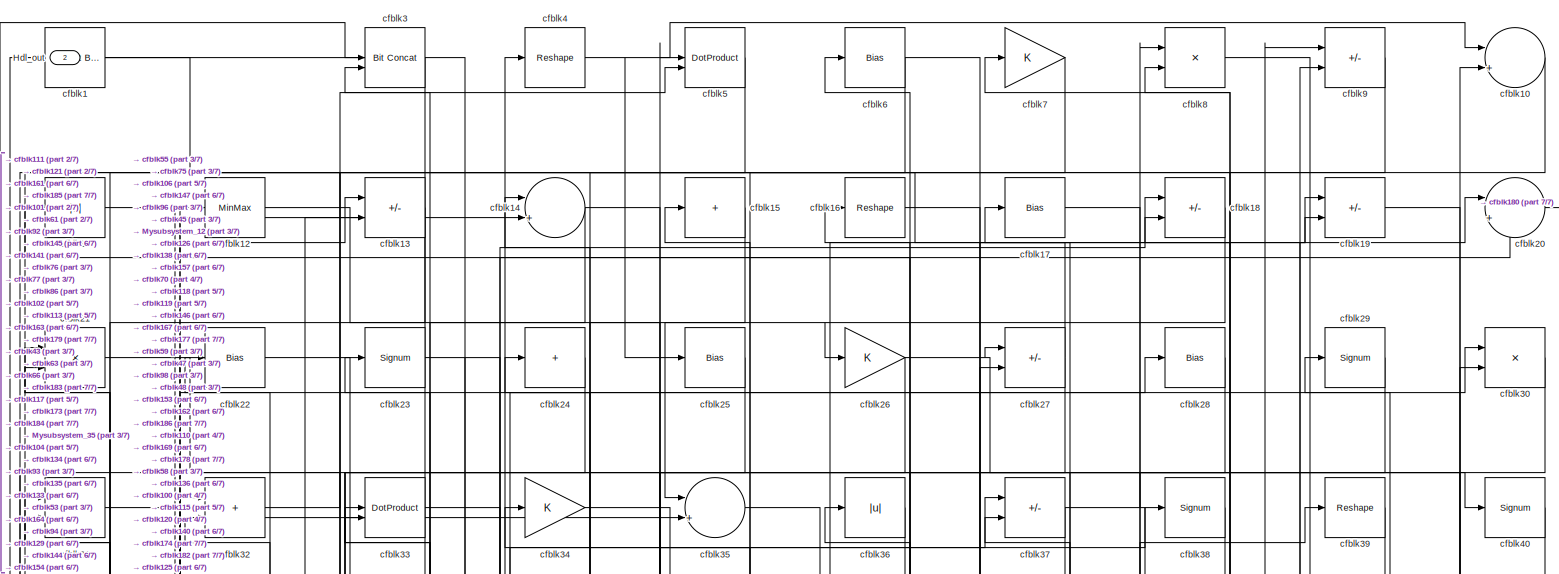
[diagram: root canvas - part 1/7, full width, top band]
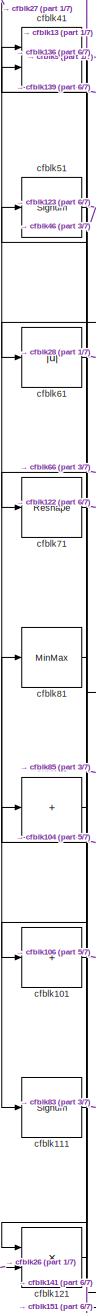
[diagram: root canvas - part 2/7, middle left region]
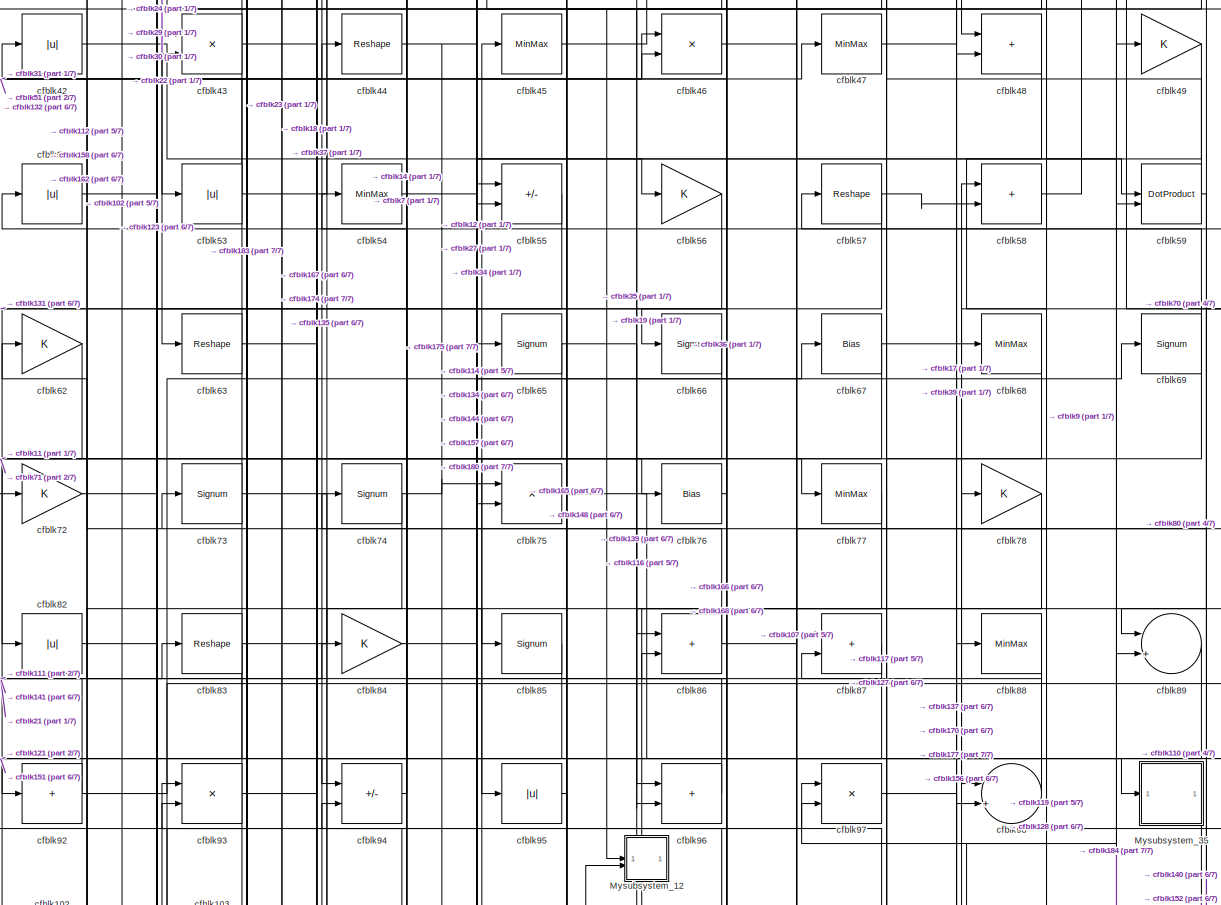
[diagram: root canvas - part 3/7, full width, middle band]
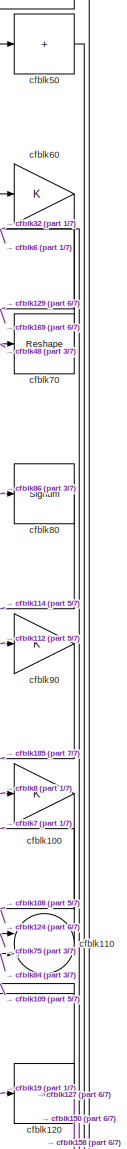
[diagram: root canvas - part 4/7, middle right region]
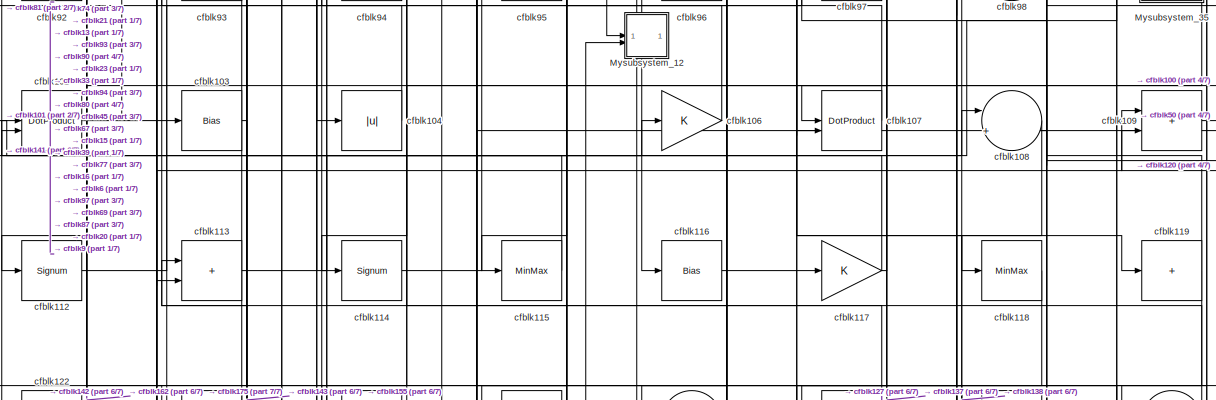
[diagram: root canvas - part 5/7, full width, middle band]
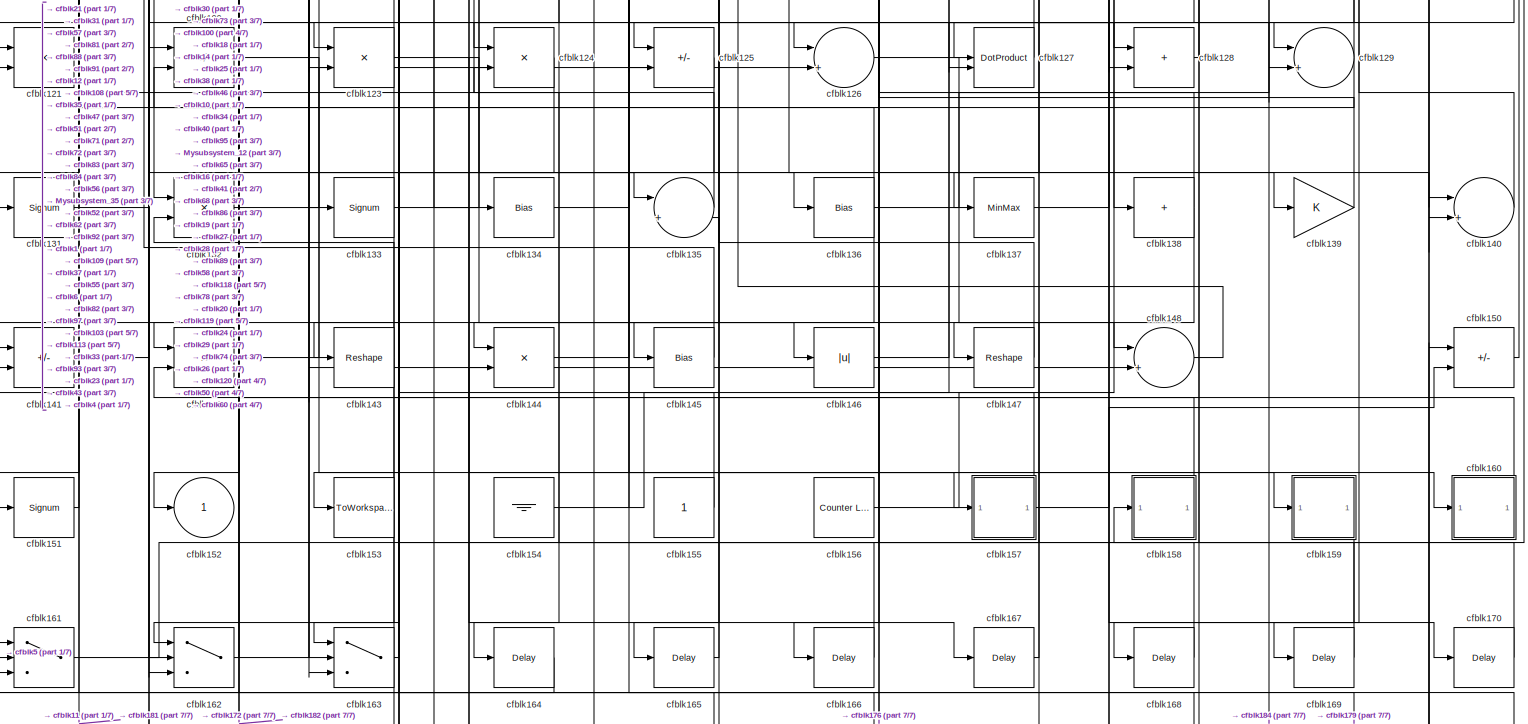
[diagram: root canvas - part 6/7, full width, bottom band]
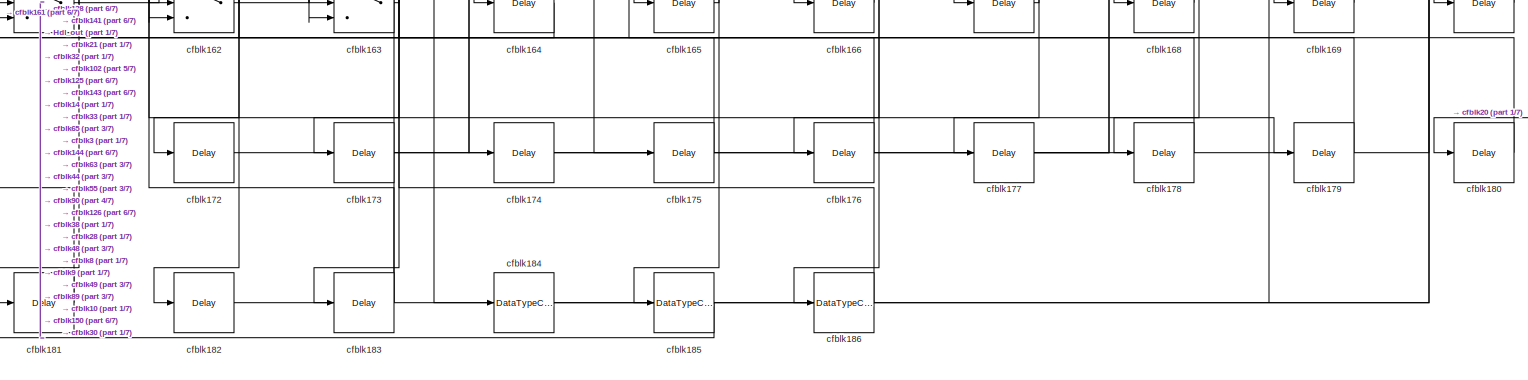
[diagram: root canvas - part 7/7, full width, bottom band]
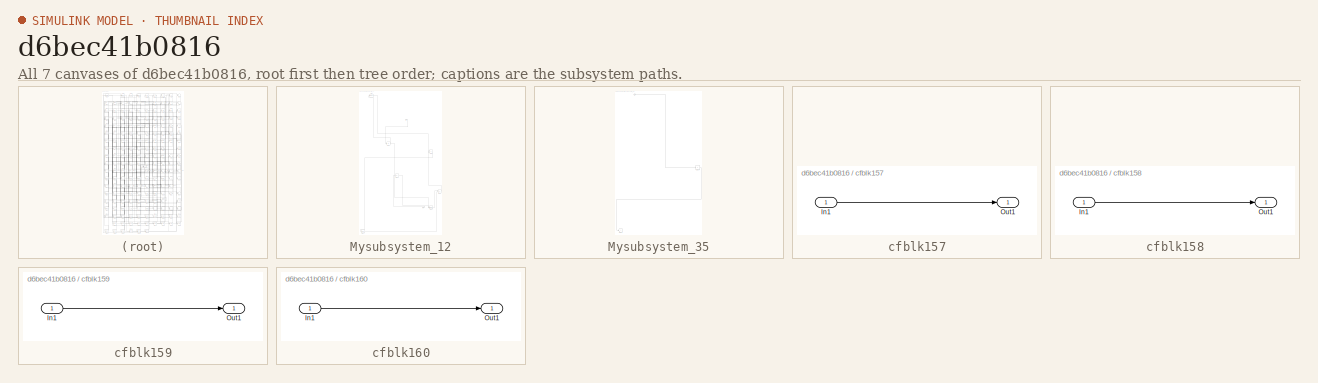
[diagram: thumbnail index - all 7 canvases of the model, root first then tree order]
MODEL slx_d6bec41b0816
KIND model
CONFIG AbsTol = auto
CONFIG EnableMultiTasking = off
CONFIG FixedStep = auto
CONFIG MaxStep = auto
CONFIG MinStep = auto
CONFIG RelTol = 1e-3
CONFIG SampleTimeConstraint = Unconstrained
CONFIG SolverName = VariableStepAuto
CONFIG StartTime = 0.0
CONFIG StopTime = 10.0
BLOCK [Outport] Hdl_out
  OutDataTypeStr = uint8
  Port = 2
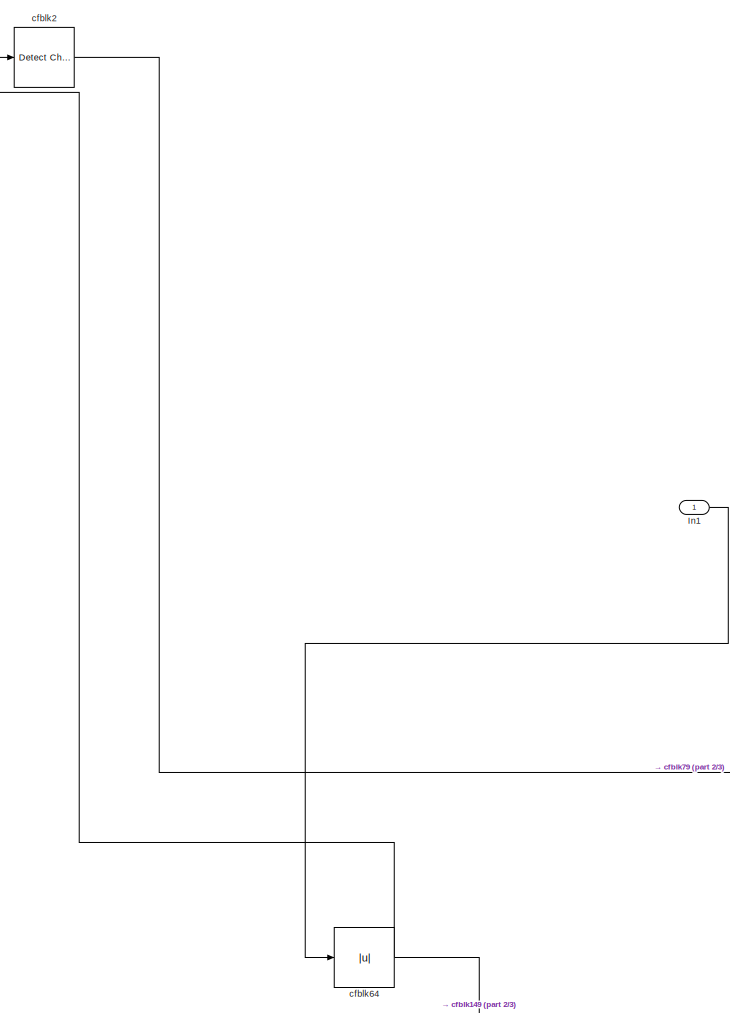
[diagram: Mysubsystem_12 - part 1/3, top center region]
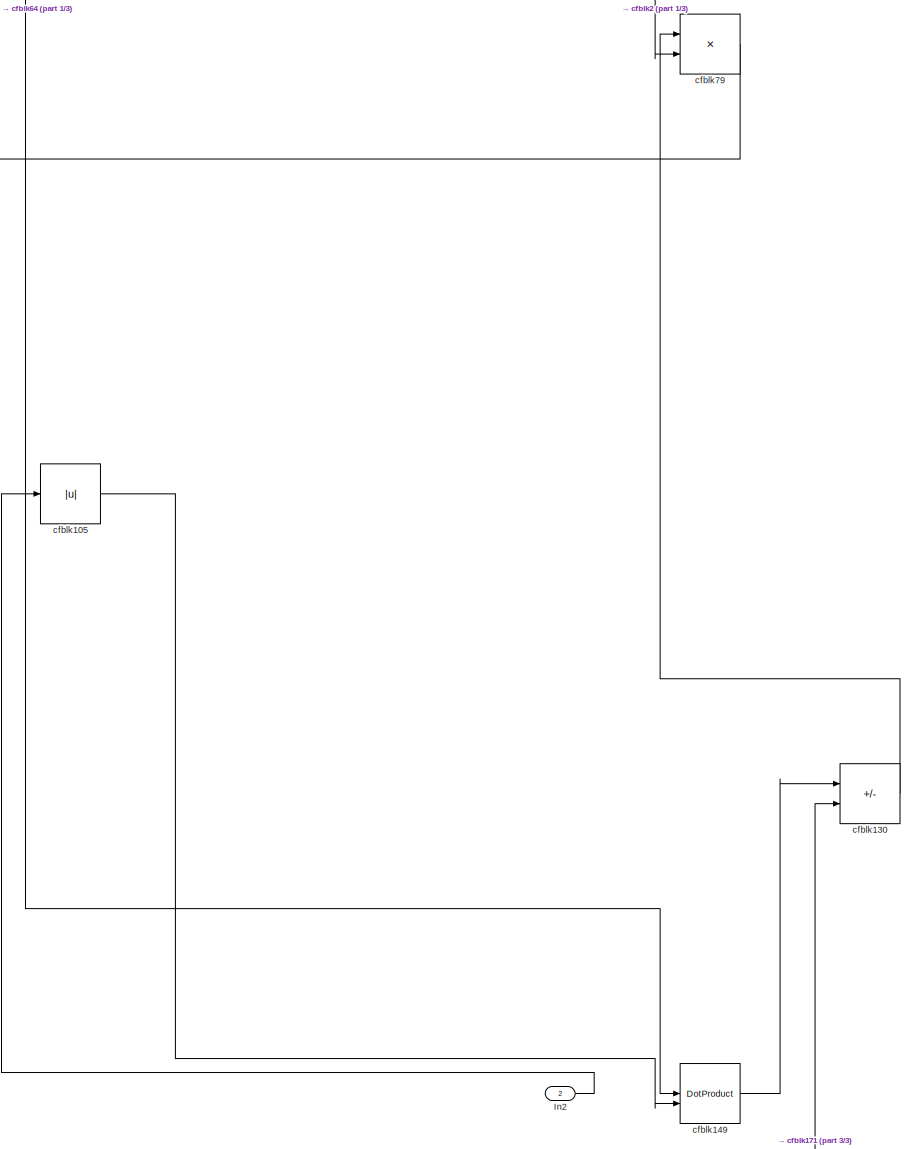
[diagram: Mysubsystem_12 - part 2/3, middle right region]
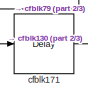
[diagram: Mysubsystem_12 - part 3/3, bottom left region]
BLOCK [SubSystem] Mysubsystem_12
  RTWFcnName = Mysubsystem_12
  RTWFcnNameOpts = User specified
  RTWFileNameOpts = Use function name
  RTWSystemCode = Reusable function
  TreatAsAtomicUnit = on
BLOCK [Inport] Mysubsystem_12/In1
BLOCK [Inport] Mysubsystem_12/In2
  Port = 2
BLOCK [Abs] Mysubsystem_12/cfblk105
  SaturateOnIntegerOverflow = off
BLOCK [Sum] Mysubsystem_12/cfblk130
  IconShape = rectangular
  Inputs = +-
BLOCK [DotProduct] Mysubsystem_12/cfblk149
  OutDataTypeStr = Inherit: Inherit via internal rule
BLOCK [Delay] Mysubsystem_12/cfblk171
  InputPortMap = u0
  SampleTime = 1
BLOCK [Reference] Mysubsystem_12/cfblk2  REF=simulink/Logic and Bit
Operations/Detect
Change
  LibrarySourceBlock = hdlsllib/Logic and Bit\nOperations/Detect\nChange
  SourceBlock = simulink/Logic and Bit\nOperations/Detect\nChange
  SourceType = Detect Change
BLOCK [Abs] Mysubsystem_12/cfblk64
  SaturateOnIntegerOverflow = off
BLOCK [Product] Mysubsystem_12/cfblk79
  Inputs = */
  RndMeth = Zero
  SaturateOnIntegerOverflow = on
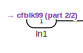
[diagram: Mysubsystem_35 - part 1/2, top left region]
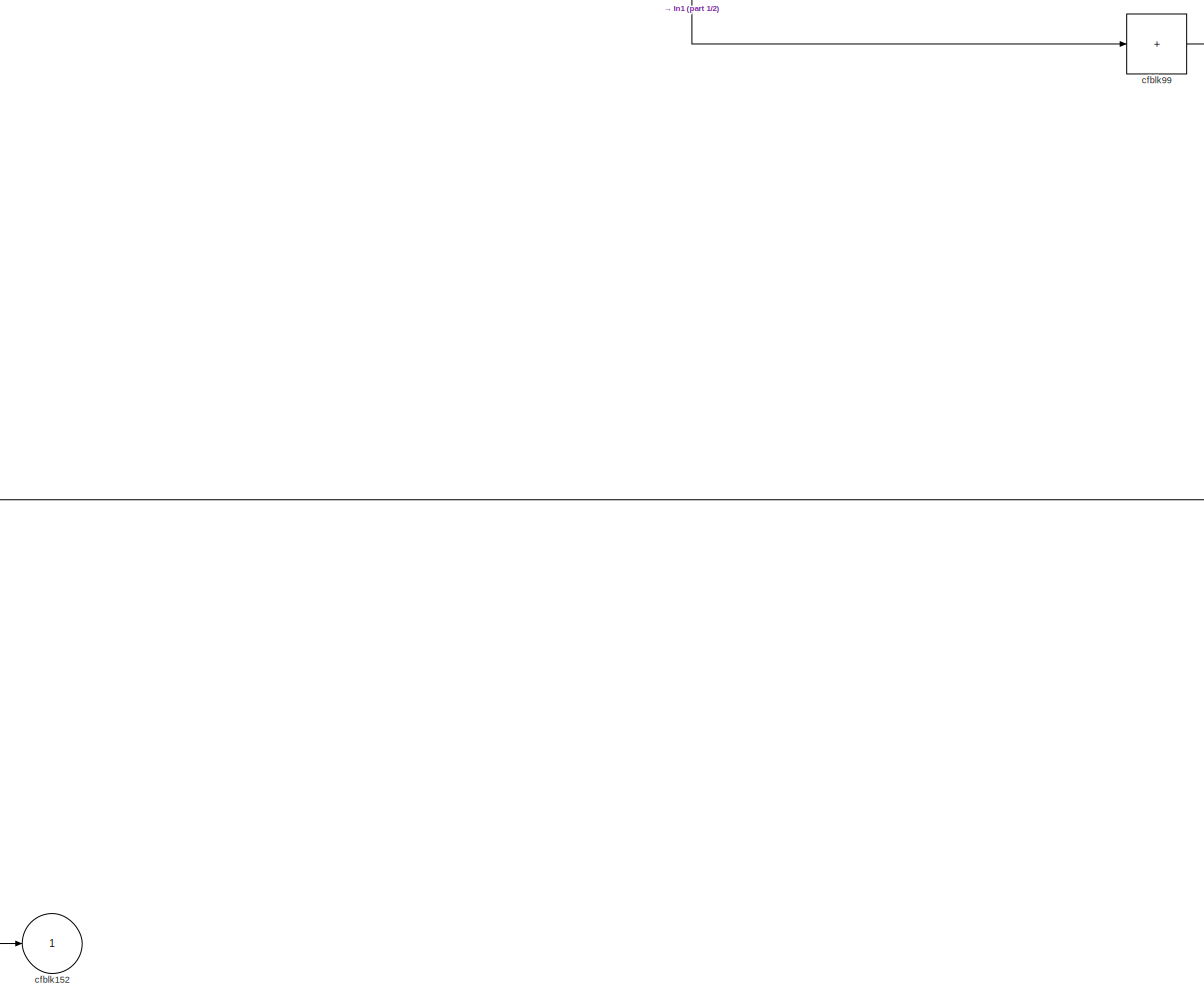
[diagram: Mysubsystem_35 - part 2/2, full width, bottom band]
BLOCK [SubSystem] Mysubsystem_35
  RTWFcnName = Mysubsystem_35
  RTWFcnNameOpts = User specified
  RTWFileNameOpts = Use function name
  RTWSystemCode = Reusable function
  TreatAsAtomicUnit = on
BLOCK [Inport] Mysubsystem_35/In1
BLOCK [Outport] Mysubsystem_35/cfblk152
  VectorParamsAs1DForOutWhenUnconnected = off
BLOCK [Sum] Mysubsystem_35/cfblk99
  IconShape = rectangular
  Inputs = +
BLOCK [Reference] cfblk1  REF=simulink/Logic and Bit
Operations/Extract Bits
  LibrarySourceBlock = hdlsllib/Logic and Bit\nOperations/Extract Bits
  SourceBlock = simulink/Logic and Bit\nOperations/Extract Bits
  SourceType = Extract Bits
BLOCK [Sum] cfblk10
  Inputs = |++
  OutDataTypeStr = uint8
BLOCK [Gain] cfblk100
  OutDataTypeStr = uint8
BLOCK [Sum] cfblk101
  IconShape = rectangular
  Inputs = +
  OutDataTypeStr = uint8
BLOCK [DotProduct] cfblk102
  OutDataTypeStr = uint8
BLOCK [Bias] cfblk103
  Bias = 0.0
  SaturateOnIntegerOverflow = off
BLOCK [Abs] cfblk104
  OutDataTypeStr = uint8
  SaturateOnIntegerOverflow = off
BLOCK [Gain] cfblk106
  OutDataTypeStr = uint8
BLOCK [DotProduct] cfblk107
  OutDataTypeStr = uint8
BLOCK [Sum] cfblk108
  Inputs = |++
  OutDataTypeStr = uint8
BLOCK [Sum] cfblk109
  IconShape = rectangular
  OutDataTypeStr = uint8
BLOCK [Abs] cfblk11
  OutDataTypeStr = uint8
  SaturateOnIntegerOverflow = off
BLOCK [Sum] cfblk110
  Inputs = |++
  OutDataTypeStr = uint8
BLOCK [Signum] cfblk111
BLOCK [Signum] cfblk112
BLOCK [Sum] cfblk113
  IconShape = rectangular
  OutDataTypeStr = uint8
BLOCK [Signum] cfblk114
BLOCK [MinMax] cfblk115
  OutDataTypeStr = uint8
BLOCK [Bias] cfblk116
  Bias = 0.0
  SaturateOnIntegerOverflow = off
BLOCK [Gain] cfblk117
  OutDataTypeStr = uint8
BLOCK [MinMax] cfblk118
  OutDataTypeStr = uint8
BLOCK [Sum] cfblk119
  IconShape = rectangular
  Inputs = +
  OutDataTypeStr = uint8
BLOCK [MinMax] cfblk12
  OutDataTypeStr = uint8
BLOCK [Sum] cfblk120
  IconShape = rectangular
  Inputs = +
  OutDataTypeStr = uint8
BLOCK [Product] cfblk121
  Inputs = */
  OutDataTypeStr = uint8
  RndMeth = Zero
  SaturateOnIntegerOverflow = on
BLOCK [Sum] cfblk122
  IconShape = rectangular
  Inputs = +-
  OutDataTypeStr = uint8
BLOCK [Product] cfblk123
  Inputs = */
  OutDataTypeStr = uint8
  RndMeth = Zero
  SaturateOnIntegerOverflow = on
BLOCK [Product] cfblk124
  Inputs = */
  OutDataTypeStr = uint8
  RndMeth = Zero
  SaturateOnIntegerOverflow = on
BLOCK [Sum] cfblk125
  IconShape = rectangular
  Inputs = +-
  OutDataTypeStr = uint8
BLOCK [Sum] cfblk126
  Inputs = |++
  OutDataTypeStr = uint8
BLOCK [DotProduct] cfblk127
  OutDataTypeStr = uint8
BLOCK [Sum] cfblk128
  IconShape = rectangular
  OutDataTypeStr = uint8
BLOCK [Sum] cfblk129
  Inputs = |++
  OutDataTypeStr = uint8
BLOCK [Sum] cfblk13
  IconShape = rectangular
  Inputs = +-
  OutDataTypeStr = uint8
BLOCK [Signum] cfblk131
BLOCK [Product] cfblk132
  Inputs = */
  OutDataTypeStr = uint8
  RndMeth = Zero
  SaturateOnIntegerOverflow = on
BLOCK [Signum] cfblk133
BLOCK [Bias] cfblk134
  Bias = 0.0
  SaturateOnIntegerOverflow = off
BLOCK [Sum] cfblk135
  Inputs = |++
  OutDataTypeStr = uint8
BLOCK [Bias] cfblk136
  Bias = 0.0
  SaturateOnIntegerOverflow = off
BLOCK [MinMax] cfblk137
  OutDataTypeStr = uint8
BLOCK [Sum] cfblk138
  IconShape = rectangular
  Inputs = +
  OutDataTypeStr = uint8
BLOCK [Gain] cfblk139
  OutDataTypeStr = uint8
BLOCK [Sum] cfblk14
  Inputs = |++
  OutDataTypeStr = uint8
BLOCK [Sum] cfblk140
  Inputs = |++
  OutDataTypeStr = uint8
BLOCK [Sum] cfblk141
  IconShape = rectangular
  Inputs = +-
  OutDataTypeStr = uint8
BLOCK [Product] cfblk142
  Inputs = */
  OutDataTypeStr = uint8
  RndMeth = Zero
  SaturateOnIntegerOverflow = on
BLOCK [Reshape] cfblk143
BLOCK [Product] cfblk144
  Inputs = */
  OutDataTypeStr = uint8
  RndMeth = Zero
  SaturateOnIntegerOverflow = on
BLOCK [Bias] cfblk145
  Bias = 0.0
  SaturateOnIntegerOverflow = off
BLOCK [Abs] cfblk146
  OutDataTypeStr = uint8
  SaturateOnIntegerOverflow = off
BLOCK [Reshape] cfblk147
BLOCK [Sum] cfblk148
  Inputs = |++
  OutDataTypeStr = uint8
BLOCK [Sum] cfblk15
  IconShape = rectangular
  Inputs = +
  OutDataTypeStr = uint8
BLOCK [Sum] cfblk150
  IconShape = rectangular
  Inputs = +-
  OutDataTypeStr = uint8
BLOCK [Signum] cfblk151
BLOCK [Outport] cfblk152
  OutDataTypeStr = uint8
  VectorParamsAs1DForOutWhenUnconnected = off
BLOCK [ToWorkspace] cfblk153
  MaxDataPoints = inf
  SampleTime = -1
  SaveFormat = Timeseries
  VariableName = simout
BLOCK [Ground] cfblk154
BLOCK [Constant] cfblk155
  OutDataTypeStr = uint8
  SampleTime = -1
BLOCK [Reference] cfblk156  REF=hdlsllib/Sources/Counter
Limited
  SourceBlock = hdlsllib/Sources/Counter\nLimited
  SourceType = Counter Limited
BLOCK [SubSystem] cfblk157
  LibrarySourceBlock = hdlsllib/Ports &\nSubsystems/Subsystem
BLOCK [Inport] cfblk157/In1
BLOCK [Outport] cfblk157/Out1
BLOCK [SubSystem] cfblk158
  LibrarySourceBlock = hdlsllib/Ports &\nSubsystems/Subsystem
BLOCK [Inport] cfblk158/In1
BLOCK [Outport] cfblk158/Out1
BLOCK [SubSystem] cfblk159
  LibrarySourceBlock = hdlsllib/Ports &\nSubsystems/Subsystem
BLOCK [Inport] cfblk159/In1
BLOCK [Outport] cfblk159/Out1
BLOCK [Reshape] cfblk16
BLOCK [SubSystem] cfblk160
  LibrarySourceBlock = hdlsllib/Ports &\nSubsystems/Subsystem
BLOCK [Inport] cfblk160/In1
BLOCK [Outport] cfblk160/Out1
BLOCK [Switch] cfblk161
  InputSameDT = off
  OutDataTypeStr = uint8
  SaturateOnIntegerOverflow = off
BLOCK [Switch] cfblk162
  InputSameDT = off
  OutDataTypeStr = uint8
  SaturateOnIntegerOverflow = off
BLOCK [Switch] cfblk163
  InputSameDT = off
  OutDataTypeStr = uint8
  SaturateOnIntegerOverflow = off
BLOCK [Delay] cfblk164
  InputPortMap = u0
  SampleTime = 1
BLOCK [Delay] cfblk165
  InputPortMap = u0
  SampleTime = 1
BLOCK [Delay] cfblk166
  InputPortMap = u0
  SampleTime = 1
BLOCK [Delay] cfblk167
  InputPortMap = u0
  SampleTime = 1
BLOCK [Delay] cfblk168
  InputPortMap = u0
  SampleTime = 1
BLOCK [Delay] cfblk169
  InputPortMap = u0
  SampleTime = 1
BLOCK [Bias] cfblk17
  Bias = 0.0
  SaturateOnIntegerOverflow = off
BLOCK [Delay] cfblk170
  InputPortMap = u0
  SampleTime = 1
BLOCK [Delay] cfblk172
  InputPortMap = u0
  SampleTime = 1
BLOCK [Delay] cfblk173
  InputPortMap = u0
  SampleTime = 1
BLOCK [Delay] cfblk174
  InputPortMap = u0
  SampleTime = 1
BLOCK [Delay] cfblk175
  InputPortMap = u0
  SampleTime = 1
BLOCK [Delay] cfblk176
  InputPortMap = u0
  SampleTime = 1
BLOCK [Delay] cfblk177
  InputPortMap = u0
  SampleTime = 1
BLOCK [Delay] cfblk178
  InputPortMap = u0
  SampleTime = 1
BLOCK [Delay] cfblk179
  InputPortMap = u0
  SampleTime = 1
BLOCK [Sum] cfblk18
  IconShape = rectangular
  Inputs = +-
  OutDataTypeStr = uint8
BLOCK [Delay] cfblk180
  InputPortMap = u0
  SampleTime = 1
BLOCK [Delay] cfblk181
  InputPortMap = u0
  SampleTime = 1
BLOCK [Delay] cfblk182
  InputPortMap = u0
  SampleTime = 1
BLOCK [Delay] cfblk183
  InputPortMap = u0
  SampleTime = 1
BLOCK [DataTypeConversion] cfblk184
  OutDataTypeStr = uint8
  RndMeth = Floor
  SaturateOnIntegerOverflow = off
BLOCK [DataTypeConversion] cfblk185
  OutDataTypeStr = uint8
  RndMeth = Floor
  SaturateOnIntegerOverflow = off
BLOCK [DataTypeConversion] cfblk186
  OutDataTypeStr = uint8
  RndMeth = Floor
  SaturateOnIntegerOverflow = off
BLOCK [Sum] cfblk19
  IconShape = rectangular
  Inputs = +-
  OutDataTypeStr = uint8
BLOCK [Sum] cfblk20
  Inputs = |++
  OutDataTypeStr = uint8
BLOCK [Product] cfblk21
  Inputs = */
  OutDataTypeStr = uint8
  RndMeth = Zero
  SaturateOnIntegerOverflow = on
BLOCK [Bias] cfblk22
  Bias = 0.0
  SaturateOnIntegerOverflow = off
BLOCK [Signum] cfblk23
BLOCK [Sum] cfblk24
  IconShape = rectangular
  Inputs = +
  OutDataTypeStr = uint8
BLOCK [Bias] cfblk25
  Bias = 0.0
  SaturateOnIntegerOverflow = off
BLOCK [Gain] cfblk26
  OutDataTypeStr = uint8
BLOCK [Sum] cfblk27
  IconShape = rectangular
  Inputs = +-
  OutDataTypeStr = uint8
BLOCK [Bias] cfblk28
  Bias = 0.0
  SaturateOnIntegerOverflow = off
BLOCK [Signum] cfblk29
BLOCK [Reference] cfblk3  REF=hdlsllib/Logic and Bit
Operations/Bit Concat
  SourceBlock = hdlsllib/Logic and Bit\nOperations/Bit Concat
  SourceType = Bit Concat
BLOCK [Product] cfblk30
  Inputs = */
  OutDataTypeStr = uint8
  RndMeth = Zero
  SaturateOnIntegerOverflow = on
BLOCK [Sum] cfblk31
  IconShape = rectangular
  OutDataTypeStr = uint8
BLOCK [Sum] cfblk32
  IconShape = rectangular
  OutDataTypeStr = uint8
BLOCK [DotProduct] cfblk33
  OutDataTypeStr = uint8
BLOCK [Gain] cfblk34
  OutDataTypeStr = uint8
BLOCK [Sum] cfblk35
  Inputs = |++
  OutDataTypeStr = uint8
BLOCK [Abs] cfblk36
  OutDataTypeStr = uint8
  SaturateOnIntegerOverflow = off
BLOCK [Sum] cfblk37
  IconShape = rectangular
  Inputs = +-
  OutDataTypeStr = uint8
BLOCK [Signum] cfblk38
BLOCK [Reshape] cfblk39
BLOCK [Reshape] cfblk4
BLOCK [Signum] cfblk40
BLOCK [Sum] cfblk41
  IconShape = rectangular
  OutDataTypeStr = uint8
BLOCK [Abs] cfblk42
  OutDataTypeStr = uint8
  SaturateOnIntegerOverflow = off
BLOCK [Product] cfblk43
  Inputs = */
  OutDataTypeStr = uint8
  RndMeth = Zero
  SaturateOnIntegerOverflow = on
BLOCK [Reshape] cfblk44
BLOCK [MinMax] cfblk45
  OutDataTypeStr = uint8
BLOCK [Product] cfblk46
  Inputs = */
  OutDataTypeStr = uint8
  RndMeth = Zero
  SaturateOnIntegerOverflow = on
BLOCK [MinMax] cfblk47
  OutDataTypeStr = uint8
BLOCK [Sum] cfblk48
  IconShape = rectangular
  OutDataTypeStr = uint8
BLOCK [Gain] cfblk49
  OutDataTypeStr = uint8
BLOCK [DotProduct] cfblk5
  OutDataTypeStr = uint8
BLOCK [Sum] cfblk50
  IconShape = rectangular
  Inputs = +
  OutDataTypeStr = uint8
BLOCK [Signum] cfblk51
BLOCK [Abs] cfblk52
  OutDataTypeStr = uint8
  SaturateOnIntegerOverflow = off
BLOCK [Abs] cfblk53
  OutDataTypeStr = uint8
  SaturateOnIntegerOverflow = off
BLOCK [MinMax] cfblk54
  OutDataTypeStr = uint8
BLOCK [Sum] cfblk55
  IconShape = rectangular
  Inputs = +-
  OutDataTypeStr = uint8
BLOCK [Gain] cfblk56
  OutDataTypeStr = uint8
BLOCK [Reshape] cfblk57
BLOCK [Sum] cfblk58
  IconShape = rectangular
  OutDataTypeStr = uint8
BLOCK [DotProduct] cfblk59
  OutDataTypeStr = uint8
BLOCK [Bias] cfblk6
  Bias = 0.0
  SaturateOnIntegerOverflow = off
BLOCK [Gain] cfblk60
  OutDataTypeStr = uint8
BLOCK [Abs] cfblk61
  OutDataTypeStr = uint8
  SaturateOnIntegerOverflow = off
BLOCK [Gain] cfblk62
  OutDataTypeStr = uint8
BLOCK [Reshape] cfblk63
BLOCK [Signum] cfblk65
BLOCK [Signum] cfblk66
BLOCK [Bias] cfblk67
  Bias = 0.0
  SaturateOnIntegerOverflow = off
BLOCK [MinMax] cfblk68
  OutDataTypeStr = uint8
BLOCK [Signum] cfblk69
BLOCK [Gain] cfblk7
  OutDataTypeStr = uint8
BLOCK [Reshape] cfblk70
BLOCK [Reshape] cfblk71
BLOCK [Gain] cfblk72
  OutDataTypeStr = uint8
BLOCK [Signum] cfblk73
BLOCK [Signum] cfblk74
BLOCK [Product] cfblk75
  Inputs = */
  OutDataTypeStr = uint8
  RndMeth = Zero
  SaturateOnIntegerOverflow = on
BLOCK [Bias] cfblk76
  Bias = 0.0
  SaturateOnIntegerOverflow = off
BLOCK [MinMax] cfblk77
  OutDataTypeStr = uint8
BLOCK [Gain] cfblk78
  OutDataTypeStr = uint8
BLOCK [Product] cfblk8
  Inputs = */
  OutDataTypeStr = uint8
  RndMeth = Zero
  SaturateOnIntegerOverflow = on
BLOCK [Signum] cfblk80
BLOCK [MinMax] cfblk81
  OutDataTypeStr = uint8
BLOCK [Abs] cfblk82
  OutDataTypeStr = uint8
  SaturateOnIntegerOverflow = off
BLOCK [Reshape] cfblk83
BLOCK [Gain] cfblk84
  OutDataTypeStr = uint8
BLOCK [Signum] cfblk85
BLOCK [Sum] cfblk86
  IconShape = rectangular
  OutDataTypeStr = uint8
BLOCK [Sum] cfblk87
  IconShape = rectangular
  OutDataTypeStr = uint8
BLOCK [MinMax] cfblk88
  OutDataTypeStr = uint8
BLOCK [Sum] cfblk89
  Inputs = |++
  OutDataTypeStr = uint8
BLOCK [Sum] cfblk9
  IconShape = rectangular
  Inputs = +-
  OutDataTypeStr = uint8
BLOCK [Gain] cfblk90
  OutDataTypeStr = uint8
BLOCK [Sum] cfblk91
  IconShape = rectangular
  Inputs = +
  OutDataTypeStr = uint8
BLOCK [Sum] cfblk92
  IconShape = rectangular
  Inputs = +
  OutDataTypeStr = uint8
BLOCK [Product] cfblk93
  Inputs = */
  OutDataTypeStr = uint8
  RndMeth = Zero
  SaturateOnIntegerOverflow = on
BLOCK [Sum] cfblk94
  IconShape = rectangular
  Inputs = +-
  OutDataTypeStr = uint8
BLOCK [Abs] cfblk95
  OutDataTypeStr = uint8
  SaturateOnIntegerOverflow = off
BLOCK [Sum] cfblk96
  IconShape = rectangular
  OutDataTypeStr = uint8
BLOCK [Product] cfblk97
  Inputs = */
  OutDataTypeStr = uint8
  RndMeth = Zero
  SaturateOnIntegerOverflow = on
BLOCK [Sum] cfblk98
  Inputs = |++
  OutDataTypeStr = uint8
LINE Mysubsystem_12/In1:1 -> Mysubsystem_12/cfblk64:1
LINE Mysubsystem_12/In2:1 -> Mysubsystem_12/cfblk105:1
LINE Mysubsystem_12/cfblk105:1 -> Mysubsystem_12/cfblk149:2
LINE Mysubsystem_12/cfblk130:1 -> Mysubsystem_12/cfblk79:1
LINE Mysubsystem_12/cfblk149:1 -> Mysubsystem_12/cfblk130:1
LINE Mysubsystem_12/cfblk171:1 -> Mysubsystem_12/cfblk130:2
LINE Mysubsystem_12/cfblk2:1 -> Mysubsystem_12/cfblk79:2
NET Mysubsystem_12/cfblk64:1 -> Mysubsystem_12/cfblk149:1, Mysubsystem_12/cfblk2:1
LINE Mysubsystem_12/cfblk79:1 -> Mysubsystem_12/cfblk171:1
LINE Mysubsystem_35/In1:1 -> Mysubsystem_35/cfblk99:1
LINE Mysubsystem_35/cfblk99:1 -> Mysubsystem_35/cfblk152:1
LINE Mysubsystem_35:1 -> cfblk152:1
NET cfblk100:1 -> cfblk108:2, cfblk124:1
LINE cfblk101:1 -> cfblk106:1
NET cfblk102:1 -> cfblk13:2, cfblk93:1
LINE cfblk103:1 -> cfblk143:1
LINE cfblk104:1 -> cfblk81:1
LINE cfblk106:1 -> cfblk15:1
LINE cfblk107:1 -> cfblk94:2
LINE cfblk108:1 -> cfblk138:1
LINE cfblk109:1 -> cfblk50:1
LINE cfblk10:1 -> cfblk145:1
LINE cfblk110:1 -> cfblk7:1
LINE cfblk111:1 -> cfblk83:1
LINE cfblk112:1 -> cfblk90:1
NET cfblk113:1 -> cfblk20:2, cfblk9:2
NET cfblk114:1 -> cfblk45:1, cfblk67:1
LINE cfblk115:1 -> cfblk102:1
LINE cfblk116:1 -> cfblk117:1
NET cfblk117:1 -> cfblk23:1, cfblk87:2
LINE cfblk118:1 -> cfblk142:1
NET cfblk119:1 -> cfblk137:1, cfblk97:2
NET cfblk11:1 -> cfblk14:2, cfblk76:1
NET cfblk120:1 -> cfblk109:1, cfblk127:2, cfblk8:2
LINE cfblk121:1 -> cfblk41:1
LINE cfblk122:1 -> cfblk159:1
NET cfblk123:1 -> cfblk146:1, cfblk160:1
LINE cfblk124:1 -> cfblk163:1
LINE cfblk125:1 -> cfblk182:1
NET cfblk126:1 -> cfblk148:1, cfblk176:1
LINE cfblk127:1 -> cfblk103:1
LINE cfblk128:1 -> cfblk78:1
NET cfblk129:1 -> cfblk122:2, cfblk24:1
LINE cfblk12:1 -> cfblk55:2
LINE cfblk131:1 -> cfblk72:1
NET cfblk132:1 -> cfblk148:2, cfblk97:1
LINE cfblk133:1 -> cfblk30:1
LINE cfblk134:1 -> cfblk65:1
NET cfblk135:1 -> cfblk31:1, cfblk4:1
NET cfblk136:1 -> cfblk144:1, cfblk20:1, cfblk21:1
LINE cfblk137:1 -> cfblk88:1
NET cfblk138:1 -> cfblk11:1, cfblk181:1
LINE cfblk139:1 -> cfblk41:2
LINE cfblk13:1 -> cfblk101:1
NET cfblk140:1 -> cfblk29:1, cfblk74:1
NET cfblk141:1 -> cfblk108:1, cfblk35:2, cfblk47:1, cfblk84:1
LINE cfblk142:1 -> cfblk126:2
NET cfblk143:1 -> cfblk132:2, cfblk172:1
NET cfblk144:1 -> cfblk38:1, cfblk46:1
LINE cfblk145:1 -> cfblk12:1
LINE cfblk146:1 -> cfblk19:2
LINE cfblk147:1 -> cfblk34:1
LINE cfblk148:1 -> Mysubsystem_12:2
NET cfblk14:1 -> cfblk129:2, cfblk173:1
LINE cfblk150:1 -> cfblk60:1
LINE cfblk151:1 -> cfblk91:1
NET cfblk154:1 -> cfblk27:2, cfblk5:1
LINE cfblk155:1 -> cfblk113:1
LINE cfblk156:1 -> cfblk58:1
LINE cfblk157/In1:1 -> cfblk157/Out1:1
NET cfblk157:1 -> cfblk150:2, cfblk16:1
LINE cfblk158/In1:1 -> cfblk158/Out1:1
LINE cfblk158:1 -> cfblk52:1
LINE cfblk159/In1:1 -> cfblk159/Out1:1
LINE cfblk159:1 -> cfblk168:1
LINE cfblk15:1 -> cfblk35:1
LINE cfblk160/In1:1 -> cfblk160/Out1:1
LINE cfblk160:1 -> cfblk142:2
LINE cfblk161:1 -> cfblk147:1
NET cfblk162:1 -> cfblk109:2, cfblk62:1
LINE cfblk163:1 -> cfblk33:1
LINE cfblk164:1 -> cfblk1:1
LINE cfblk165:1 -> cfblk135:2
LINE cfblk166:1 -> cfblk93:2
LINE cfblk167:1 -> cfblk37:2
LINE cfblk168:1 -> cfblk86:2
LINE cfblk169:1 -> cfblk18:2
LINE cfblk16:1 -> cfblk118:1
LINE cfblk170:1 -> cfblk124:2
LINE cfblk172:1 -> cfblk144:2
LINE cfblk173:1 -> cfblk8:1
LINE cfblk174:1 -> cfblk10:2
LINE cfblk175:1 -> cfblk102:2
LINE cfblk176:1 -> cfblk161:3
LINE cfblk177:1 -> cfblk48:2
LINE cfblk178:1 -> cfblk33:2
LINE cfblk179:1 -> cfblk141:2
LINE cfblk17:1 -> cfblk98:2
LINE cfblk180:1 -> cfblk55:1
LINE cfblk181:1 -> cfblk161:1
LINE cfblk182:1 -> cfblk30:2
NET cfblk183:1 -> Hdl_out:1, cfblk32:1
NET cfblk184:1 -> cfblk150:1, cfblk49:1, cfblk89:2
LINE cfblk185:1 -> cfblk3:1
LINE cfblk186:1 -> cfblk3:2
NET cfblk18:1 -> cfblk164:1, cfblk26:1
LINE cfblk19:1 -> cfblk120:1
LINE cfblk1:1 -> cfblk133:1
LINE cfblk20:1 -> cfblk180:1
NET cfblk21:1 -> cfblk113:2, cfblk179:1
LINE cfblk22:1 -> cfblk66:1
NET cfblk23:1 -> Mysubsystem_35:1, cfblk134:1
LINE cfblk24:1 -> cfblk43:1
LINE cfblk25:1 -> cfblk125:2
NET cfblk26:1 -> cfblk121:2, cfblk140:1, cfblk27:1
NET cfblk27:1 -> cfblk111:1, cfblk75:2
NET cfblk28:1 -> cfblk126:1, cfblk177:1
LINE cfblk29:1 -> cfblk63:1
LINE cfblk30:1 -> cfblk53:1
LINE cfblk31:1 -> cfblk77:1
LINE cfblk32:1 -> cfblk5:2
LINE cfblk33:1 -> cfblk104:1
LINE cfblk34:1 -> cfblk86:1
LINE cfblk35:1 -> cfblk96:1
LINE cfblk36:1 -> Mysubsystem_12:1
NET cfblk37:1 -> cfblk163:3, cfblk40:1, cfblk48:1
NET cfblk38:1 -> cfblk153:1, cfblk162:3, cfblk186:1
LINE cfblk39:1 -> cfblk115:1
LINE cfblk3:1 -> cfblk184:1
LINE cfblk40:1 -> cfblk125:1
LINE cfblk41:1 -> cfblk136:1
LINE cfblk42:1 -> cfblk56:1
LINE cfblk43:1 -> cfblk167:1
NET cfblk44:1 -> cfblk175:1, cfblk59:2
LINE cfblk45:1 -> cfblk19:1
LINE cfblk46:1 -> cfblk87:1
LINE cfblk47:1 -> cfblk39:1
LINE cfblk48:1 -> cfblk70:1
LINE cfblk49:1 -> cfblk68:1
NET cfblk4:1 -> cfblk10:1, cfblk25:1
LINE cfblk50:1 -> cfblk158:1
NET cfblk51:1 -> cfblk123:1, cfblk46:2
LINE cfblk52:1 -> cfblk43:2
NET cfblk53:1 -> cfblk31:2, cfblk37:1
LINE cfblk54:1 -> cfblk59:1
LINE cfblk55:1 -> cfblk123:2
LINE cfblk56:1 -> cfblk132:1
NET cfblk57:1 -> cfblk131:1, cfblk58:2
LINE cfblk58:1 -> cfblk9:1
NET cfblk59:1 -> cfblk17:1, cfblk89:1
LINE cfblk5:1 -> cfblk161:2
NET cfblk60:1 -> cfblk129:1, cfblk169:1
NET cfblk61:1 -> cfblk13:1, cfblk28:1
LINE cfblk62:1 -> cfblk82:1
LINE cfblk63:1 -> cfblk174:1
NET cfblk65:1 -> cfblk139:1, cfblk183:1
LINE cfblk66:1 -> cfblk71:1
NET cfblk67:1 -> cfblk107:2, cfblk98:1
NET cfblk68:1 -> cfblk166:1, cfblk95:1
NET cfblk69:1 -> cfblk107:1, cfblk57:1
NET cfblk6:1 -> cfblk119:1, cfblk163:2
NET cfblk70:1 -> cfblk32:2, cfblk6:1
LINE cfblk71:1 -> cfblk122:1
LINE cfblk72:1 -> cfblk44:1
LINE cfblk73:1 -> cfblk135:1
NET cfblk74:1 -> cfblk112:1, cfblk75:1
LINE cfblk75:1 -> cfblk110:1
LINE cfblk76:1 -> cfblk36:1
LINE cfblk77:1 -> cfblk116:1
LINE cfblk78:1 -> cfblk96:2
LINE cfblk7:1 -> cfblk94:1
LINE cfblk80:1 -> cfblk114:1
LINE cfblk81:1 -> cfblk141:1
NET cfblk82:1 -> cfblk128:1, cfblk128:2, cfblk140:2
NET cfblk83:1 -> cfblk162:2, cfblk85:1
NET cfblk84:1 -> cfblk110:2, cfblk157:1
LINE cfblk85:1 -> cfblk121:1
NET cfblk86:1 -> cfblk22:1, cfblk73:1, cfblk80:1
LINE cfblk87:1 -> cfblk92:1
LINE cfblk88:1 -> cfblk151:1
LINE cfblk89:1 -> cfblk127:1
LINE cfblk8:1 -> cfblk100:1
LINE cfblk90:1 -> cfblk185:1
LINE cfblk91:1 -> cfblk51:1
NET cfblk92:1 -> cfblk162:1, cfblk21:2, cfblk69:1
LINE cfblk93:1 -> cfblk18:1
LINE cfblk94:1 -> cfblk14:1
LINE cfblk95:1 -> cfblk165:1
LINE cfblk96:1 -> cfblk54:1
LINE cfblk97:1 -> cfblk170:1
LINE cfblk98:1 -> cfblk42:1
NET cfblk9:1 -> cfblk178:1, cfblk61:1
note: NET lines group one-source signal fan-out (src -> all destinations, sorted); 1:1 wires keep LINE
